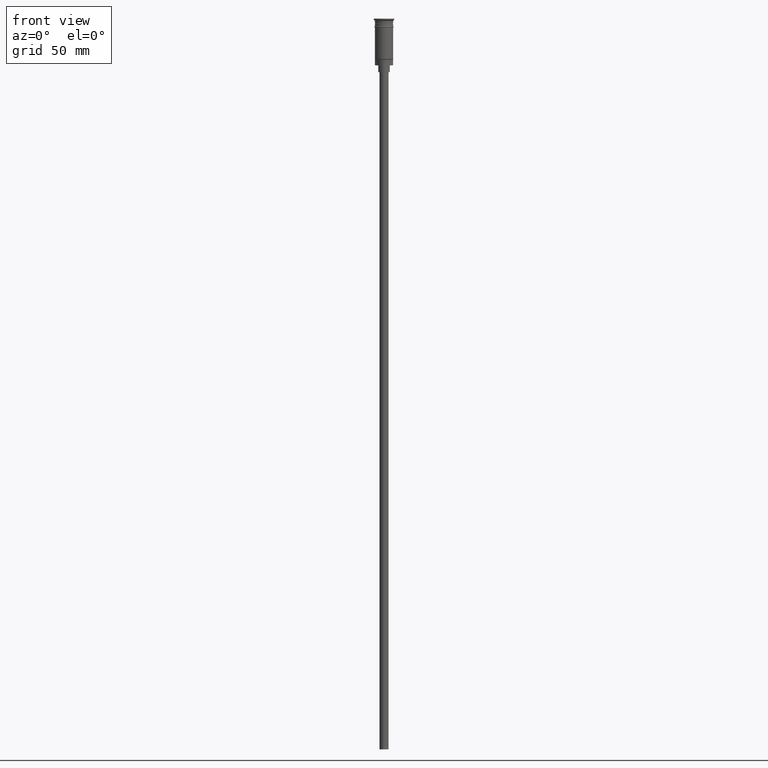
[diagram: clean part render]
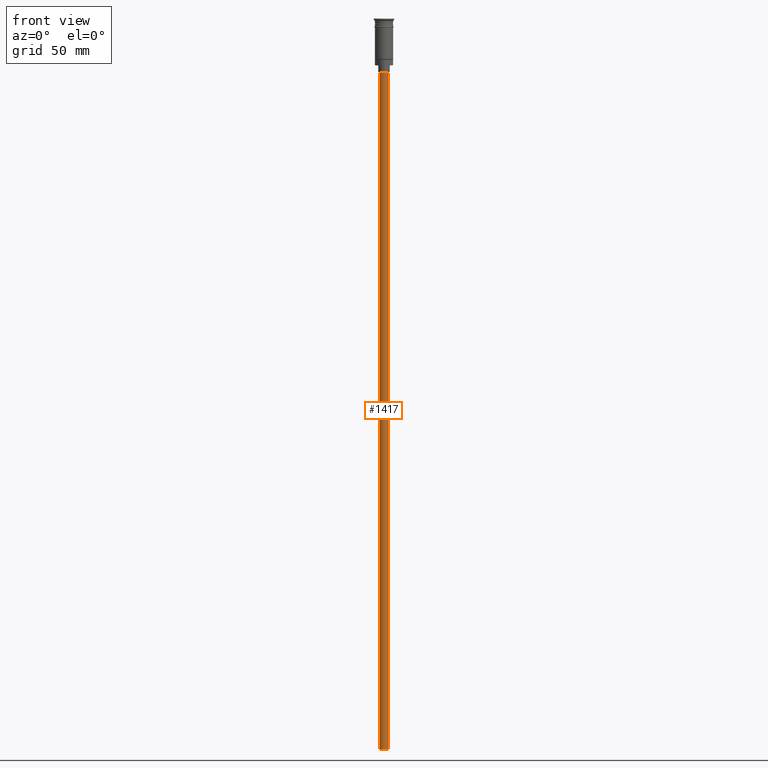
[diagram: same view with one face highlighted and labeled with its STEP entity id]
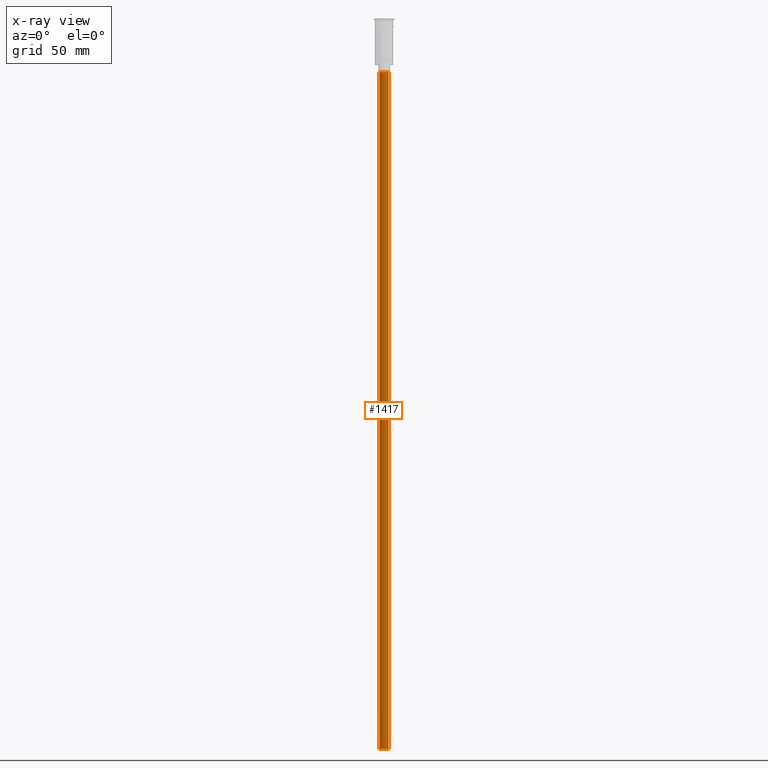
[diagram: x-ray of the same camera — body ghosted, the highlighted face saturated]
A machine part, front view. The second image highlights one B-rep face of the part: STEP entity #1417.
The next image is the same camera in x-ray: the body ghosted, the highlighted face saturated — about 0% of this face is hidden behind the body in this view.
In plain terms, the highlighted cylindrical surface (edge-blend (fillet) strip) has radius 2 mm, axis along (-0, -0, 1).
Its self-contained STEP definition (entity closure, byte-faithful):
#23 = DIRECTION ( 'NONE',  ( 0.000000000000000000, 0.000000000000000000, -1.000000000000000000 ) ) ;
#35 = CARTESIAN_POINT ( 'NONE',  ( -2.000000000000000000, 2.449293598294706414E-16, -23.49999999999999645 ) ) ;
#39 = DIRECTION ( 'NONE',  ( -1.000000000000000000, 0.000000000000000000, 0.000000000000000000 ) ) ;
#49 = CARTESIAN_POINT ( 'NONE',  ( 2.000000000000000000, 0.000000000000000000, -320.5000000000000000 ) ) ;
#90 = ORIENTED_EDGE ( 'NONE', *, *, #273, .T. ) ;
#99 = AXIS2_PLACEMENT_3D ( 'NONE', #130, #23, #1478 ) ;
#130 = CARTESIAN_POINT ( 'NONE',  ( 0.000000000000000000, 0.000000000000000000, -23.49999999999999645 ) ) ;
#211 = LINE ( 'NONE', #700, #845 ) ;
#273 = EDGE_CURVE ( 'NONE', #1405, #822, #561, .T. ) ;
#388 = ORIENTED_EDGE ( 'NONE', *, *, #767, .T. ) ;
#394 = DIRECTION ( 'NONE',  ( -0.000000000000000000, -0.000000000000000000, 1.000000000000000000 ) ) ;
#559 = CIRCLE ( 'NONE', #99, 2.000000000000000000 ) ;
#561 = LINE ( 'NONE', #1059, #582 ) ;
#582 = VECTOR ( 'NONE', #651, 1000.000000000000000 ) ;
#603 = CARTESIAN_POINT ( 'NONE',  ( -2.000000000000000000, 2.449293598294706414E-16, -320.5000000000000000 ) ) ;
#633 = AXIS2_PLACEMENT_3D ( 'NONE', #932, #394, #891 ) ;
#651 = DIRECTION ( 'NONE',  ( -0.000000000000000000, -0.000000000000000000, 1.000000000000000000 ) ) ;
#690 = AXIS2_PLACEMENT_3D ( 'NONE', #1423, #1265, #39 ) ;
#700 = CARTESIAN_POINT ( 'NONE',  ( -2.000000000000000000, 2.449293598294706414E-16, -320.5000000000000000 ) ) ;
#704 = VERTEX_POINT ( 'NONE', #603 ) ;
#767 = EDGE_CURVE ( 'NONE', #822, #1588, #559, .T. ) ;
#813 = ORIENTED_EDGE ( 'NONE', *, *, #1496, .F. ) ;
#822 = VERTEX_POINT ( 'NONE', #1359 ) ;
#845 = VECTOR ( 'NONE', #1218, 1000.000000000000000 ) ;
#864 = ORIENTED_EDGE ( 'NONE', *, *, #1365, .F. ) ;
#891 = DIRECTION ( 'NONE',  ( 1.000000000000000000, 0.000000000000000000, 0.000000000000000000 ) ) ;
#932 = CARTESIAN_POINT ( 'NONE',  ( 0.000000000000000000, 0.000000000000000000, -320.5000000000000000 ) ) ;
#1059 = CARTESIAN_POINT ( 'NONE',  ( 2.000000000000000000, 0.000000000000000000, -320.5000000000000000 ) ) ;
#1080 = EDGE_LOOP ( 'NONE', ( #813, #864, #90, #388 ) ) ;
#1187 = CIRCLE ( 'NONE', #690, 2.000000000000000000 ) ;
#1218 = DIRECTION ( 'NONE',  ( -0.000000000000000000, -0.000000000000000000, 1.000000000000000000 ) ) ;
#1265 = DIRECTION ( 'NONE',  ( 0.000000000000000000, 0.000000000000000000, -1.000000000000000000 ) ) ;
#1294 = CYLINDRICAL_SURFACE ( 'NONE', #633, 2.000000000000000000 ) ;
#1359 = CARTESIAN_POINT ( 'NONE',  ( 2.000000000000000000, 0.000000000000000000, -23.49999999999999645 ) ) ;
#1365 = EDGE_CURVE ( 'NONE', #1405, #704, #1187, .T. ) ;
#1405 = VERTEX_POINT ( 'NONE', #49 ) ;
#1417 = ADVANCED_FACE ( 'NONE', ( #1529 ), #1294, .T. ) ;
#1423 = CARTESIAN_POINT ( 'NONE',  ( 0.000000000000000000, 0.000000000000000000, -320.5000000000000000 ) ) ;
#1478 = DIRECTION ( 'NONE',  ( -1.000000000000000000, 0.000000000000000000, 0.000000000000000000 ) ) ;
#1496 = EDGE_CURVE ( 'NONE', #704, #1588, #211, .T. ) ;
#1529 = FACE_OUTER_BOUND ( 'NONE', #1080, .T. ) ;
#1588 = VERTEX_POINT ( 'NONE', #35 ) ;